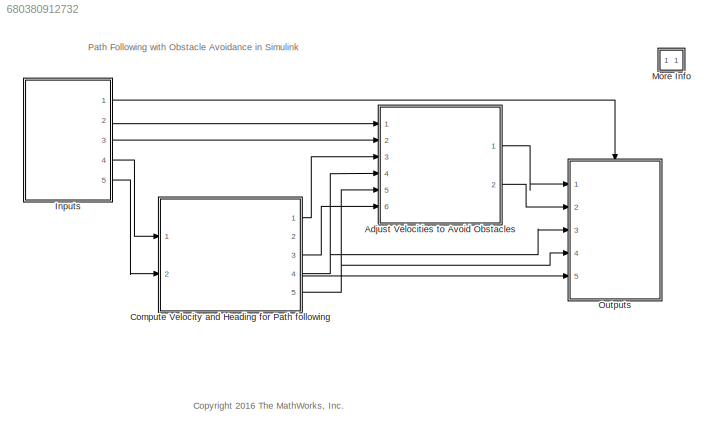
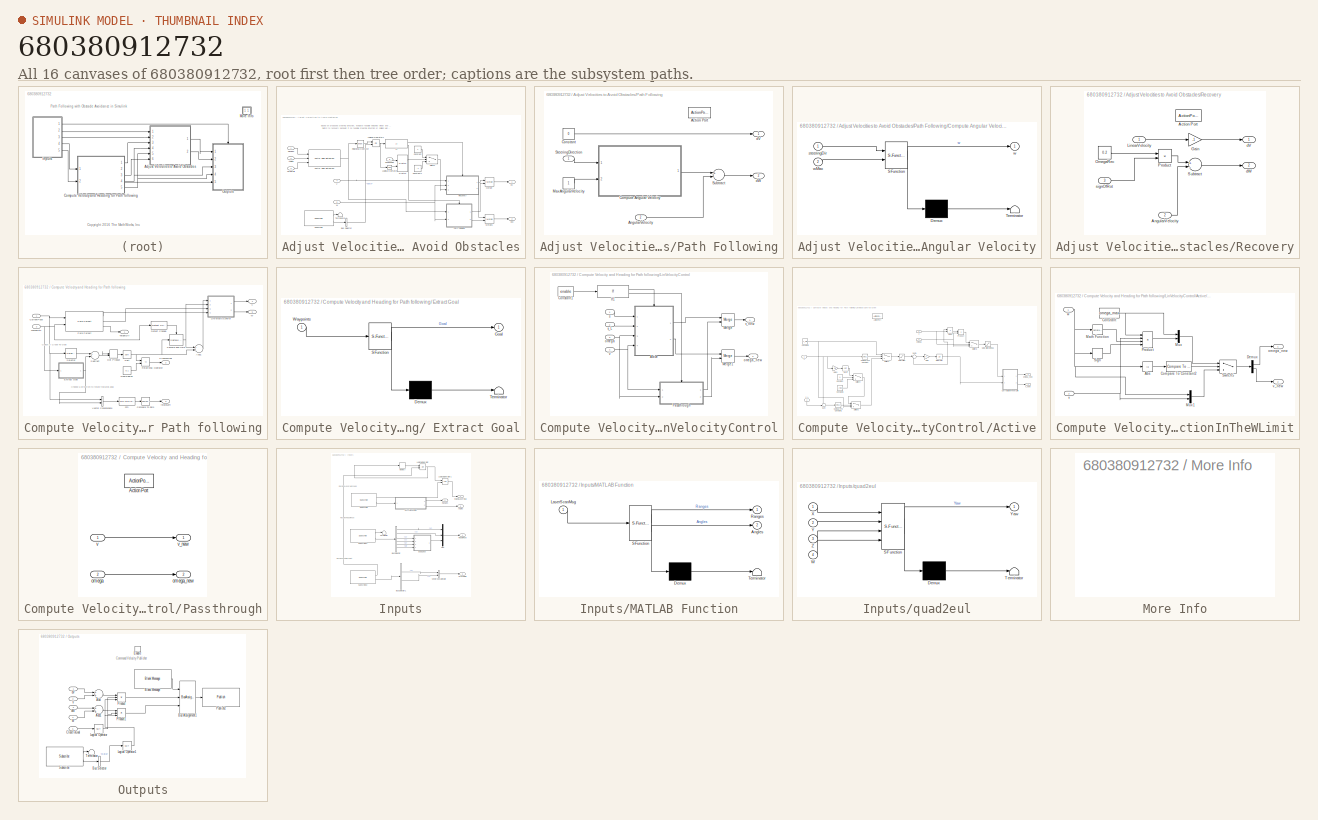
[diagram: thumbnail index - all 16 canvases of the model, root first then tree order]
MODEL slx_680380912732
KIND model
CONFIG AbsTol = auto
CONFIG EnableMultiTasking = off
CONFIG FixedStep = 0.05
CONFIG MaxStep = auto
CONFIG MinStep = auto
CONFIG RelTol = 1e-3
CONFIG SampleTimeConstraint = Unconstrained
CONFIG Solver = FixedStepAuto
CONFIG SolverName = FixedStepAuto
CONFIG StartTime = 0.0
CONFIG StopTime = 10.0
WORKSPACE source: MAT-file member
WORKSPACE SL_ROS_VariableLengthArrays_MaxSizes: struct (value not decoded)
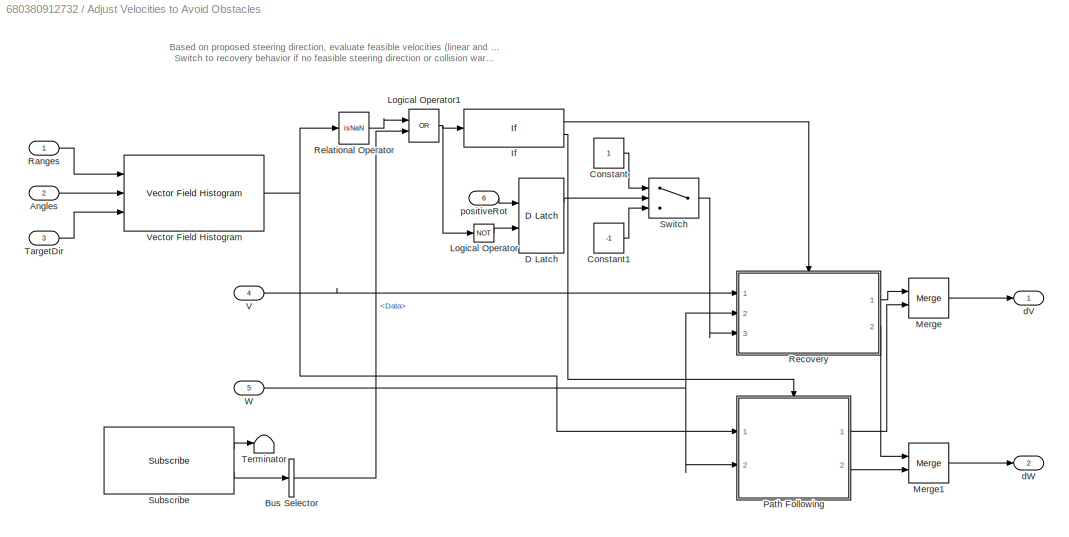
BLOCK [SubSystem] Adjust Velocities to Avoid Obstacles
  Ports = [6, 2]
  RequestExecContextInheritance = off
  Variant = off
BLOCK [Inport] Adjust Velocities to Avoid Obstacles/Angles
  IconDisplay = Port number
  Port = 2
BLOCK [BusSelector] Adjust Velocities to Avoid Obstacles/Bus Selector
  OutputAsBus = off
  OutputSignals = Data
  Ports = [1, 1]
BLOCK [Constant] Adjust Velocities to Avoid Obstacles/Constant
BLOCK [Constant] Adjust Velocities to Avoid Obstacles/Constant1
  Value = -1
BLOCK [Reference] Adjust Velocities to Avoid Obstacles/D Latch  REF=simulink_extras/Flip Flops/D Latch
  Ports = [2, 2]
  SourceBlock = simulink_extras/Flip Flops/D Latch
  SourceProductBaseCode = SL
  SourceProductName = Simulink
  SourceType = DLatch
BLOCK [If] Adjust Velocities to Avoid Obstacles/If
  IfExpression = u1 == 1
  Ports = [1, 2]
BLOCK [Logic] Adjust Velocities to Avoid Obstacles/Logical Operator
  AllPortsSameDT = off
  IconShape = distinctive
  Operator = NOT
  OutDataTypeStr = boolean
  Ports = [1, 1]
BLOCK [Logic] Adjust Velocities to Avoid Obstacles/Logical Operator1
  AllPortsSameDT = off
  Operator = OR
  OutDataTypeStr = boolean
  Ports = [2, 1]
BLOCK [Merge] Adjust Velocities to Avoid Obstacles/Merge
  Ports = [2, 1]
BLOCK [Merge] Adjust Velocities to Avoid Obstacles/Merge1
  Ports = [2, 1]
BLOCK [SubSystem] Adjust Velocities to Avoid Obstacles/Path Following
  Ports = [2, 2, 0, 0, 0, 0, 0, 1]
  RequestExecContextInheritance = off
  TreatAsAtomicUnit = on
  Variant = off
BLOCK [ActionPort] Adjust Velocities to Avoid Obstacles/Path Following/Action Port
  ActionType = else
BLOCK [Inport] Adjust Velocities to Avoid Obstacles/Path Following/AngularVelocity
  IconDisplay = Port number
  Port = 2
BLOCK [SubSystem] Adjust Velocities to Avoid Obstacles/Path Following/Compute Angular Velocity
  ErrorFcn = Stateflow.Translate.translate
  PermitHierarchicalResolution = ExplicitOnly
  Ports = [2, 1]
  RequestExecContextInheritance = off
  SFBlockType = MATLAB Function
  TreatAsAtomicUnit = on
  Variant = off
BLOCK [Demux] Adjust Velocities to Avoid Obstacles/Path Following/Compute Angular Velocity/ Demux 
  Outputs = 1
  Ports = [1, 1]
BLOCK [S-Function] Adjust Velocities to Avoid Obstacles/Path Following/Compute Angular Velocity/ SFunction 
  EnableBusSupport = on
  FunctionName = sf_sfun
  PortCounts = [2 2]
  Ports = [2, 2]
  SFcnIsStateOwnerBlock = off
  SFunctionDeploymentMode = off
  Tag = Stateflow S-Function Pure_Pursuit_With_VFH 8
BLOCK [Terminator] Adjust Velocities to Avoid Obstacles/Path Following/Compute Angular Velocity/ Terminator 
BLOCK [Inport] Adjust Velocities to Avoid Obstacles/Path Following/Compute Angular Velocity/steeringDir
  IconDisplay = Port number
BLOCK [Outport] Adjust Velocities to Avoid Obstacles/Path Following/Compute Angular Velocity/w
  IconDisplay = Port number
BLOCK [Inport] Adjust Velocities to Avoid Obstacles/Path Following/Compute Angular Velocity/wMax
  IconDisplay = Port number
  Port = 2
BLOCK [Constant] Adjust Velocities to Avoid Obstacles/Path Following/Constant
  Value = 0
BLOCK [Constant] Adjust Velocities to Avoid Obstacles/Path Following/MaxAngularVelocity
BLOCK [Inport] Adjust Velocities to Avoid Obstacles/Path Following/SteeringDirection
  IconDisplay = Port number
BLOCK [Sum] Adjust Velocities to Avoid Obstacles/Path Following/Subtract
  InputSameDT = off
  Inputs = +-
  OutDataTypeStr = Inherit: Inherit via internal rule
  Ports = [2, 1]
  SaturateOnIntegerOverflow = off
BLOCK [Outport] Adjust Velocities to Avoid Obstacles/Path Following/dV
  IconDisplay = Port number
BLOCK [Outport] Adjust Velocities to Avoid Obstacles/Path Following/dW
  IconDisplay = Port number
  Port = 2
BLOCK [Inport] Adjust Velocities to Avoid Obstacles/Ranges
  IconDisplay = Port number
BLOCK [SubSystem] Adjust Velocities to Avoid Obstacles/Recovery
  Ports = [3, 2, 0, 0, 0, 0, 0, 1]
  RequestExecContextInheritance = off
  TreatAsAtomicUnit = on
  Variant = off
BLOCK [ActionPort] Adjust Velocities to Avoid Obstacles/Recovery/Action Port
  ActionType = then
BLOCK [Inport] Adjust Velocities to Avoid Obstacles/Recovery/AngularVelocity
  IconDisplay = Port number
  Port = 2
BLOCK [Gain] Adjust Velocities to Avoid Obstacles/Recovery/Gain
  Gain = -1
  OutDataTypeStr = Inherit: Inherit via internal rule
  ParamDataTypeStr = Inherit: Inherit via internal rule
  SaturateOnIntegerOverflow = off
BLOCK [Inport] Adjust Velocities to Avoid Obstacles/Recovery/LinearVelocity
  IconDisplay = Port number
BLOCK [Constant] Adjust Velocities to Avoid Obstacles/Recovery/OmegaRec
  Value = 0.2
BLOCK [Product] Adjust Velocities to Avoid Obstacles/Recovery/Product
  InputSameDT = off
  OutDataTypeStr = Inherit: Inherit via internal rule
  Ports = [2, 1]
  RndMeth = Floor
  SaturateOnIntegerOverflow = off
BLOCK [Sum] Adjust Velocities to Avoid Obstacles/Recovery/Subtract
  InputSameDT = off
  Inputs = +-
  OutDataTypeStr = Inherit: Inherit via internal rule
  Ports = [2, 1]
  SaturateOnIntegerOverflow = off
BLOCK [Outport] Adjust Velocities to Avoid Obstacles/Recovery/dV
  IconDisplay = Port number
BLOCK [Outport] Adjust Velocities to Avoid Obstacles/Recovery/dW
  IconDisplay = Port number
  Port = 2
BLOCK [Inport] Adjust Velocities to Avoid Obstacles/Recovery/signOfRot
  IconDisplay = Port number
  Port = 3
BLOCK [RelationalOperator] Adjust Velocities to Avoid Obstacles/Relational Operator
  InputSameDT = off
  Operator = isNaN
  OutDataTypeStr = boolean
  Ports = [1, 1]
  RndMeth = Simplest
BLOCK [Reference] Adjust Velocities to Avoid Obstacles/Subscribe  REF=robotlib/Subscribe
  Ports = [0, 2]
  SourceBlock = robotlib/Subscribe
  SourceLibraryInfo = This block requires Robotics System Toolbox
  SourceProductBaseCode = RO
  SourceProductName = Robotics System Toolbox
  SourceType = ROS Subscribe
BLOCK [Switch] Adjust Velocities to Avoid Obstacles/Switch
  Criteria = u2 > Threshold
  InputSameDT = off
  SaturateOnIntegerOverflow = off
BLOCK [Inport] Adjust Velocities to Avoid Obstacles/TargetDir
  IconDisplay = Port number
  Port = 3
BLOCK [Terminator] Adjust Velocities to Avoid Obstacles/Terminator
BLOCK [Inport] Adjust Velocities to Avoid Obstacles/V
  IconDisplay = Port number
  Port = 4
BLOCK [Reference] Adjust Velocities to Avoid Obstacles/Vector Field Histogram  REF=robotalgslib/Vector Field Histogram
  Ports = [3, 1]
  SourceBlock = robotalgslib/Vector Field Histogram
  SourceProductBaseCode = RO
  SourceProductName = Robotics System Toolbox
  SourceType = robotics.slalgs.internal.VectorFieldHistogram
BLOCK [Inport] Adjust Velocities to Avoid Obstacles/W
  IconDisplay = Port number
  Port = 5
BLOCK [Outport] Adjust Velocities to Avoid Obstacles/dV
  IconDisplay = Port number
BLOCK [Outport] Adjust Velocities to Avoid Obstacles/dW
  IconDisplay = Port number
  Port = 2
BLOCK [Inport] Adjust Velocities to Avoid Obstacles/positiveRot
  IconDisplay = Port number
  Port = 6
BLOCK [SubSystem] Compute Velocity and Heading for Path following
  Ports = [2, 5]
  RequestExecContextInheritance = off
  Variant = off
BLOCK [SubSystem] Compute Velocity and Heading for Path following/ Extract Goal
  ErrorFcn = Stateflow.Translate.translate
  PermitHierarchicalResolution = ExplicitOnly
  Ports = [1, 1]
  RequestExecContextInheritance = off
  SFBlockType = MATLAB Function
  TreatAsAtomicUnit = on
  Variant = off
BLOCK [Demux] Compute Velocity and Heading for Path following/ Extract Goal/ Demux 
  Outputs = 1
  Ports = [1, 1]
BLOCK [S-Function] Compute Velocity and Heading for Path following/ Extract Goal/ SFunction 
  EnableBusSupport = on
  FunctionName = sf_sfun
  PortCounts = [1 2]
  Ports = [1, 2]
  SFcnIsStateOwnerBlock = off
  SFunctionDeploymentMode = off
  Tag = Stateflow S-Function Pure_Pursuit_With_VFH 7
BLOCK [Terminator] Compute Velocity and Heading for Path following/ Extract Goal/ Terminator 
BLOCK [Outport] Compute Velocity and Heading for Path following/ Extract Goal/Goal
  IconDisplay = Port number
BLOCK [Inport] Compute Velocity and Heading for Path following/ Extract Goal/Waypoints
  IconDisplay = Port number
BLOCK [Sum] Compute Velocity and Heading for Path following/Add1
  InputSameDT = off
  Inputs = +-
  OutDataTypeStr = Inherit: Inherit via internal rule
  Ports = [2, 1]
  SaturateOnIntegerOverflow = off
BLOCK [Outport] Compute Velocity and Heading for Path following/CloseToGoal
  IconDisplay = Port number
  Port = 2
BLOCK [Reference] Compute Velocity and Heading for Path following/Compare To Zero  REF=simulink/Logic and Bit
Operations/Compare
To Zero
  Ports = [1, 1]
  SourceBlock = simulink/Logic and Bit\nOperations/Compare\nTo Zero
  SourceProductBaseCode = SL
  SourceProductName = Simulink
  SourceType = Compare To Zero
BLOCK [Inport] Compute Velocity and Heading for Path following/CurrentPose
  IconDisplay = Port number
BLOCK [Reference] Compute Velocity and Heading for Path following/Detect Change  REF=simulink/Logic and Bit
Operations/Detect
Change
  Ports = [1, 1]
  SourceBlock = simulink/Logic and Bit\nOperations/Detect\nChange
  SourceProductBaseCode = SL
  SourceProductName = Simulink
  SourceType = Detect Change
BLOCK [DotProduct] Compute Velocity and Heading for Path following/Dot Product
  OutDataTypeStr = Inherit: Inherit via internal rule
BLOCK [Fcn] Compute Velocity and Heading for Path following/Fcn
  Expr = (u(1)-u(4))*sin(u(3))+(u(5)-u(2))*cos(u(3))
BLOCK [Constant] Compute Velocity and Heading for Path following/GoalRadius
  Value = 0.1
BLOCK [SubSystem] Compute Velocity and Heading for Path following/LinVelocityControl
  Ports = [4, 2]
  RequestExecContextInheritance = off
  Variant = off
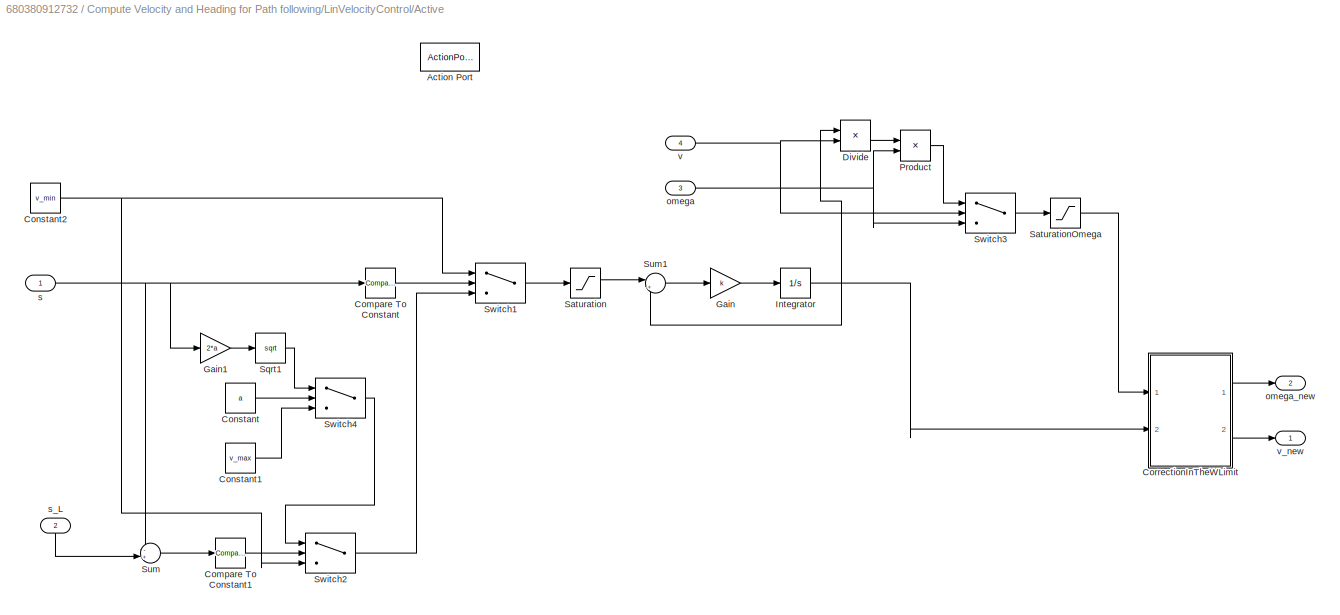
BLOCK [SubSystem] Compute Velocity and Heading for Path following/LinVelocityControl/Active
  Ports = [4, 2, 0, 0, 0, 0, 0, 1]
  RequestExecContextInheritance = off
  TreatAsAtomicUnit = on
  Variant = off
BLOCK [ActionPort] Compute Velocity and Heading for Path following/LinVelocityControl/Active/Action Port
  ActionType = then
BLOCK [Reference] Compute Velocity and Heading for Path following/LinVelocityControl/Active/Compare To Constant  REF=simulink/Logic and Bit
Operations/Compare
To Constant
  Ports = [1, 1]
  SourceBlock = simulink/Logic and Bit\nOperations/Compare\nTo Constant
  SourceProductBaseCode = SL
  SourceProductName = Simulink
  SourceType = Compare To Constant
BLOCK [Reference] Compute Velocity and Heading for Path following/LinVelocityControl/Active/Compare To Constant1  REF=simulink/Logic and Bit
Operations/Compare
To Constant
  Ports = [1, 1]
  SourceBlock = simulink/Logic and Bit\nOperations/Compare\nTo Constant
  SourceProductBaseCode = SL
  SourceProductName = Simulink
  SourceType = Compare To Constant
BLOCK [Constant] Compute Velocity and Heading for Path following/LinVelocityControl/Active/Constant
  Value = a
BLOCK [Constant] Compute Velocity and Heading for Path following/LinVelocityControl/Active/Constant1
  Value = v_max
BLOCK [Constant] Compute Velocity and Heading for Path following/LinVelocityControl/Active/Constant2
  Value = v_min
BLOCK [SubSystem] Compute Velocity and Heading for Path following/LinVelocityControl/Active/CorrectionInTheWLimit
  Ports = [2, 2]
  RequestExecContextInheritance = off
  Variant = off
BLOCK [Abs] Compute Velocity and Heading for Path following/LinVelocityControl/Active/CorrectionInTheWLimit/Abs
  SaturateOnIntegerOverflow = off
BLOCK [Reference] Compute Velocity and Heading for Path following/LinVelocityControl/Active/CorrectionInTheWLimit/Compare To Constant2  REF=simulink/Logic and Bit
Operations/Compare
To Constant
  Ports = [1, 1]
  SourceBlock = simulink/Logic and Bit\nOperations/Compare\nTo Constant
  SourceProductBaseCode = SL
  SourceProductName = Simulink
  SourceType = Compare To Constant
BLOCK [Constant] Compute Velocity and Heading for Path following/LinVelocityControl/Active/CorrectionInTheWLimit/Constant
  Value = omega_max
BLOCK [Demux] Compute Velocity and Heading for Path following/LinVelocityControl/Active/CorrectionInTheWLimit/Demux
  DisplayOption = bar
  Outputs = 2
  Ports = [1, 2]
BLOCK [Math] Compute Velocity and Heading for Path following/LinVelocityControl/Active/CorrectionInTheWLimit/Math Function
  Operator = reciprocal
  Ports = [1, 1]
BLOCK [Mux] Compute Velocity and Heading for Path following/LinVelocityControl/Active/CorrectionInTheWLimit/Mux
  DisplayOption = bar
  Inputs = 2
  Ports = [2, 1]
BLOCK [Mux] Compute Velocity and Heading for Path following/LinVelocityControl/Active/CorrectionInTheWLimit/Mux1
  DisplayOption = bar
  Inputs = 2
  Ports = [2, 1]
BLOCK [Product] Compute Velocity and Heading for Path following/LinVelocityControl/Active/CorrectionInTheWLimit/Product
  InputSameDT = off
  Inputs = 4
  OutDataTypeStr = Inherit: Inherit via internal rule
  Ports = [4, 1]
  RndMeth = Floor
  SaturateOnIntegerOverflow = off
BLOCK [Signum] Compute Velocity and Heading for Path following/LinVelocityControl/Active/CorrectionInTheWLimit/Sign
BLOCK [Switch] Compute Velocity and Heading for Path following/LinVelocityControl/Active/CorrectionInTheWLimit/Switch5
  Criteria = u2 > Threshold
  InputSameDT = off
  SaturateOnIntegerOverflow = off
BLOCK [Outport] Compute Velocity and Heading for Path following/LinVelocityControl/Active/CorrectionInTheWLimit/omega_new
  IconDisplay = Port number
BLOCK [Inport] Compute Velocity and Heading for Path following/LinVelocityControl/Active/CorrectionInTheWLimit/v
  IconDisplay = Port number
  Port = 2
BLOCK [Outport] Compute Velocity and Heading for Path following/LinVelocityControl/Active/CorrectionInTheWLimit/v_new
  IconDisplay = Port number
  Port = 2
BLOCK [Inport] Compute Velocity and Heading for Path following/LinVelocityControl/Active/CorrectionInTheWLimit/w
  IconDisplay = Port number
BLOCK [Product] Compute Velocity and Heading for Path following/LinVelocityControl/Active/Divide
  InputSameDT = off
  Inputs = */
  OutDataTypeStr = Inherit: Inherit via internal rule
  Ports = [2, 1]
  RndMeth = Floor
  SaturateOnIntegerOverflow = off
BLOCK [Gain] Compute Velocity and Heading for Path following/LinVelocityControl/Active/Gain
  Gain = k
  OutDataTypeStr = Inherit: Inherit via internal rule
  ParamDataTypeStr = Inherit: Inherit via internal rule
  SaturateOnIntegerOverflow = off
BLOCK [Gain] Compute Velocity and Heading for Path following/LinVelocityControl/Active/Gain1
  Gain = 2*a
  OutDataTypeStr = Inherit: Inherit via internal rule
  ParamDataTypeStr = Inherit: Inherit via internal rule
  SaturateOnIntegerOverflow = off
BLOCK [Integrator] Compute Velocity and Heading for Path following/LinVelocityControl/Active/Integrator
  Ports = [1, 1]
BLOCK [Product] Compute Velocity and Heading for Path following/LinVelocityControl/Active/Product
  InputSameDT = off
  OutDataTypeStr = Inherit: Inherit via internal rule
  Ports = [2, 1]
  RndMeth = Floor
  SaturateOnIntegerOverflow = off
BLOCK [Saturate] Compute Velocity and Heading for Path following/LinVelocityControl/Active/Saturation
  InputPortMap = u0
  LowerLimit = -v_max
  Ports = [1, 1]
  UpperLimit = v_max
BLOCK [Saturate] Compute Velocity and Heading for Path following/LinVelocityControl/Active/SaturationOmega
  InputPortMap = u0
  LowerLimit = -omega_max
  Ports = [1, 1]
  UpperLimit = omega_max
BLOCK [Sqrt] Compute Velocity and Heading for Path following/LinVelocityControl/Active/Sqrt1
BLOCK [Sum] Compute Velocity and Heading for Path following/LinVelocityControl/Active/Sum
  IconShape = round
  InputSameDT = off
  Inputs = -+|
  OutDataTypeStr = Inherit: Inherit via internal rule
  Ports = [2, 1]
  SaturateOnIntegerOverflow = off
BLOCK [Sum] Compute Velocity and Heading for Path following/LinVelocityControl/Active/Sum1
  IconShape = round
  InputSameDT = off
  Inputs = |+-
  OutDataTypeStr = Inherit: Inherit via internal rule
  Ports = [2, 1]
  SaturateOnIntegerOverflow = off
BLOCK [Switch] Compute Velocity and Heading for Path following/LinVelocityControl/Active/Switch1
  Criteria = u2 > Threshold
  InputSameDT = off
  SaturateOnIntegerOverflow = off
BLOCK [Switch] Compute Velocity and Heading for Path following/LinVelocityControl/Active/Switch2
  Criteria = u2 > Threshold
  InputSameDT = off
  SaturateOnIntegerOverflow = off
BLOCK [Switch] Compute Velocity and Heading for Path following/LinVelocityControl/Active/Switch3
  Criteria = u2 ~= 0
  InputSameDT = off
  SaturateOnIntegerOverflow = off
BLOCK [Switch] Compute Velocity and Heading for Path following/LinVelocityControl/Active/Switch4
  Criteria = u2 ~= 0
  InputSameDT = off
  SaturateOnIntegerOverflow = off
BLOCK [Inport] Compute Velocity and Heading for Path following/LinVelocityControl/Active/omega
  IconDisplay = Port number
  Port = 3
BLOCK [Outport] Compute Velocity and Heading for Path following/LinVelocityControl/Active/omega_new
  IconDisplay = Port number
  Port = 2
BLOCK [Inport] Compute Velocity and Heading for Path following/LinVelocityControl/Active/s
  IconDisplay = Port number
BLOCK [Inport] Compute Velocity and Heading for Path following/LinVelocityControl/Active/s_L
  IconDisplay = Port number
  Port = 2
BLOCK [Inport] Compute Velocity and Heading for Path following/LinVelocityControl/Active/v
  IconDisplay = Port number
  Port = 4
BLOCK [Outport] Compute Velocity and Heading for Path following/LinVelocityControl/Active/v_new
  IconDisplay = Port number
BLOCK [Constant] Compute Velocity and Heading for Path following/LinVelocityControl/Constant1
  OutDataTypeStr = boolean
  Value = enable
BLOCK [If] Compute Velocity and Heading for Path following/LinVelocityControl/If1
  IfExpression = u1
  Ports = [1, 2]
BLOCK [Merge] Compute Velocity and Heading for Path following/LinVelocityControl/Merge
  Ports = [2, 1]
BLOCK [Merge] Compute Velocity and Heading for Path following/LinVelocityControl/Merge1
  Ports = [2, 1]
BLOCK [SubSystem] Compute Velocity and Heading for Path following/LinVelocityControl/Passthrough
  Ports = [2, 2, 0, 0, 0, 0, 0, 1]
  RequestExecContextInheritance = off
  TreatAsAtomicUnit = on
  Variant = off
BLOCK [ActionPort] Compute Velocity and Heading for Path following/LinVelocityControl/Passthrough/Action Port
  ActionType = else
BLOCK [Inport] Compute Velocity and Heading for Path following/LinVelocityControl/Passthrough/omega
  IconDisplay = Port number
  Port = 2
BLOCK [Outport] Compute Velocity and Heading for Path following/LinVelocityControl/Passthrough/omega_new
  IconDisplay = Port number
  Port = 2
BLOCK [Inport] Compute Velocity and Heading for Path following/LinVelocityControl/Passthrough/v
  IconDisplay = Port number
BLOCK [Outport] Compute Velocity and Heading for Path following/LinVelocityControl/Passthrough/v_new
  IconDisplay = Port number
BLOCK [Inport] Compute Velocity and Heading for Path following/LinVelocityControl/omega
  IconDisplay = Port number
  Port = 3
BLOCK [Outport] Compute Velocity and Heading for Path following/LinVelocityControl/omega_new
  IconDisplay = Port number
  Port = 2
BLOCK [Inport] Compute Velocity and Heading for Path following/LinVelocityControl/s
  IconDisplay = Port number
BLOCK [Inport] Compute Velocity and Heading for Path following/LinVelocityControl/s_L
  IconDisplay = Port number
  Port = 2
BLOCK [Inport] Compute Velocity and Heading for Path following/LinVelocityControl/v
  IconDisplay = Port number
  Port = 4
BLOCK [Outport] Compute Velocity and Heading for Path following/LinVelocityControl/v_new
  IconDisplay = Port number
BLOCK [Reference] Compute Velocity and Heading for Path following/Pure Pursuit  REF=robotalgslib/Pure Pursuit
  Ports = [2, 3]
  SourceBlock = robotalgslib/Pure Pursuit
  SourceProductBaseCode = RO
  SourceProductName = Robotics System Toolbox
  SourceType = robotics.slalgs.internal.PurePursuit
BLOCK [RelationalOperator] Compute Velocity and Heading for Path following/Relational Operator
  InputSameDT = off
  Operator = <=
  OutDataTypeStr = boolean
  Ports = [2, 1]
  RndMeth = Simplest
BLOCK [Reference] Compute Velocity and Heading for Path following/Sample and Hold  REF=dspsigops/Sample
and Hold
  Ports = [1, 1, 0, 1]
  SourceBlock = dspsigops/Sample\nand Hold
  SourceProductBaseCode = DS
  SourceProductName = DSP System Toolbox
  SourceType = Sample and Hold
BLOCK [Selector] Compute Velocity and Heading for Path following/Selector
  IndexOptions = Index vector (dialog)
  Indices = [1 2]
  InputPortWidth = 3
  OutputSizes = 1
  Ports = [1, 1]
BLOCK [Sqrt] Compute Velocity and Heading for Path following/Sqrt
BLOCK [Sum] Compute Velocity and Heading for Path following/Subtract
  InputSameDT = off
  Inputs = +-
  OutDataTypeStr = Inherit: Inherit via internal rule
  Ports = [2, 1]
  SaturateOnIntegerOverflow = off
BLOCK [Outport] Compute Velocity and Heading for Path following/TargetDir
  IconDisplay = Port number
BLOCK [Outport] Compute Velocity and Heading for Path following/V
  IconDisplay = Port number
  Port = 4
BLOCK [Concatenate] Compute Velocity and Heading for Path following/Vector Concatenate
  Ports = [2, 1]
BLOCK [Outport] Compute Velocity and Heading for Path following/W
  IconDisplay = Port number
  Port = 5
BLOCK [Inport] Compute Velocity and Heading for Path following/Waypoints
  IconDisplay = Port number
  Port = 2
BLOCK [Outport] Compute Velocity and Heading for Path following/rotateLeft
  IconDisplay = Port number
  Port = 3
BLOCK [SubSystem] Inputs
  Ports = [0, 5]
  RequestExecContextInheritance = off
  Variant = off
BLOCK [Outport] Inputs/Angles
  IconDisplay = Port number
  Port = 3
BLOCK [BusSelector] Inputs/Bus Selector
  OutputAsBus = off
  OutputSignals = Pose.Pose.Position.X,Pose.Pose.Position.Y,Pose.Pose.Orientation.X,Pose.Pose.Orientation.Y,Pose.Pose.Orientation.Z,Pose.Pose.Orientation.W
  Ports = [1, 6]
BLOCK [BusSelector] Inputs/Bus Selector1
  OutputAsBus = off
  OutputSignals = X,Y
  Ports = [1, 2]
BLOCK [Outport] Inputs/IsNewLaserMsg
  IconDisplay = Port number
BLOCK [Logic] Inputs/Logical Operator
  AllPortsSameDT = off
  Operator = OR
  OutDataTypeStr = boolean
  Ports = [2, 1]
BLOCK [Logic] Inputs/Logical Operator1
  AllPortsSameDT = off
  OutDataTypeStr = boolean
  Ports = [2, 1]
BLOCK [SubSystem] Inputs/MATLAB Function
  ErrorFcn = Stateflow.Translate.translate
  PermitHierarchicalResolution = ExplicitOnly
  Ports = [1, 2]
  RequestExecContextInheritance = off
  SFBlockType = MATLAB Function
  TreatAsAtomicUnit = on
  Variant = off
BLOCK [Demux] Inputs/MATLAB Function/ Demux 
  Outputs = 1
  Ports = [1, 1]
BLOCK [S-Function] Inputs/MATLAB Function/ SFunction 
  EnableBusSupport = on
  FunctionName = sf_sfun
  PortCounts = [1 3]
  Ports = [1, 3]
  SFcnIsStateOwnerBlock = off
  SFunctionDeploymentMode = off
  Tag = Stateflow S-Function Pure_Pursuit_With_VFH 5
BLOCK [Terminator] Inputs/MATLAB Function/ Terminator 
BLOCK [Outport] Inputs/MATLAB Function/Angles
  IconDisplay = Port number
  Port = 2
BLOCK [Inport] Inputs/MATLAB Function/LaserScanMsg
  IconDisplay = Port number
BLOCK [Outport] Inputs/MATLAB Function/Ranges
  IconDisplay = Port number
BLOCK [Memory] Inputs/Memory
BLOCK [Mux] Inputs/Mux
  DisplayOption = bar
  Inputs = 3
  Ports = [3, 1]
BLOCK [Outport] Inputs/Ranges
  IconDisplay = Port number
  Port = 2
BLOCK [Outport] Inputs/RobotPose
  IconDisplay = Port number
  Port = 4
BLOCK [Reference] Inputs/Subscribe  REF=robotlib/Subscribe
  Ports = [0, 2]
  SourceBlock = robotlib/Subscribe
  SourceLibraryInfo = This block requires Robotics System Toolbox
  SourceProductBaseCode = RO
  SourceProductName = Robotics System Toolbox
  SourceType = ROS Subscribe
BLOCK [Reference] Inputs/Subscribe1  REF=robotlib/Subscribe
  Ports = [0, 2]
  SourceBlock = robotlib/Subscribe
  SourceLibraryInfo = This block requires Robotics System Toolbox
  SourceProductBaseCode = RO
  SourceProductName = Robotics System Toolbox
  SourceType = ROS Subscribe
BLOCK [Reference] Inputs/Subscribe2  REF=robotlib/Subscribe
  Ports = [0, 2]
  SourceBlock = robotlib/Subscribe
  SourceLibraryInfo = This block requires Robotics System Toolbox
  SourceProductBaseCode = RO
  SourceProductName = Robotics System Toolbox
  SourceType = ROS Subscribe
BLOCK [Terminator] Inputs/Terminator
BLOCK [Concatenate] Inputs/Vector Concatenate
  ConcatenateDimension = 2
  Mode = Multidimensional array
  Ports = [2, 1]
BLOCK [Outport] Inputs/Waypoints
  IconDisplay = Port number
  Port = 5
BLOCK [SubSystem] Inputs/quad2eul
  ErrorFcn = Stateflow.Translate.translate
  PermitHierarchicalResolution = ExplicitOnly
  Ports = [4, 1]
  RequestExecContextInheritance = off
  SFBlockType = MATLAB Function
  TreatAsAtomicUnit = on
  Variant = off
BLOCK [Demux] Inputs/quad2eul/ Demux 
  Outputs = 1
  Ports = [1, 1]
BLOCK [S-Function] Inputs/quad2eul/ SFunction 
  EnableBusSupport = on
  FunctionName = sf_sfun
  PortCounts = [4 2]
  Ports = [4, 2]
  SFcnIsStateOwnerBlock = off
  SFunctionDeploymentMode = off
  Tag = Stateflow S-Function Pure_Pursuit_With_VFH 1
BLOCK [Terminator] Inputs/quad2eul/ Terminator 
BLOCK [Inport] Inputs/quad2eul/W
  IconDisplay = Port number
  Port = 4
BLOCK [Inport] Inputs/quad2eul/X
  IconDisplay = Port number
BLOCK [Inport] Inputs/quad2eul/Y
  IconDisplay = Port number
  Port = 2
BLOCK [Outport] Inputs/quad2eul/Yaw
  IconDisplay = Port number
BLOCK [Inport] Inputs/quad2eul/Z
  IconDisplay = Port number
  Port = 3
BLOCK [SubSystem] More Info
  OpenFcn = showdemo(bdroot(gcb))
  Ports = []
  RequestExecContextInheritance = off
  Variant = off
BLOCK [SubSystem] Outputs
  Ports = [5, 0, 1]
  RequestExecContextInheritance = off
  Variant = off
BLOCK [Sum] Outputs/Add
  InputSameDT = off
  OutDataTypeStr = Inherit: Inherit via internal rule
  Ports = [2, 1]
  SaturateOnIntegerOverflow = off
BLOCK [Sum] Outputs/Add1
  InputSameDT = off
  OutDataTypeStr = Inherit: Inherit via internal rule
  Ports = [2, 1]
  SaturateOnIntegerOverflow = off
BLOCK [Reference] Outputs/Blank Message  REF=robotlib/Blank Message
  Ports = [0, 1]
  SourceBlock = robotlib/Blank Message
  SourceLibraryInfo = This block requires Robotics System Toolbox
  SourceProductBaseCode = RO
  SourceProductName = Robotics System Toolbox
  SourceType = ROS Blank Message
BLOCK [BusAssignment] Outputs/Bus Assignment1
  AssignedSignals = Linear.X,Angular.Z
  DialogController = Simulink.DDGSource_BusAssignment
  Ports = [3, 1]
BLOCK [BusSelector] Outputs/Bus Selector
  OutputAsBus = off
  OutputSignals = Data
  Ports = [1, 1]
BLOCK [Inport] Outputs/CloseToGoal
  IconDisplay = Port number
  Port = 5
BLOCK [EnablePort] Outputs/Enable
  Ports = []
BLOCK [Logic] Outputs/Logical Operator
  AllPortsSameDT = off
  Operator = NOT
  OutDataTypeStr = boolean
  Ports = [1, 1]
BLOCK [Logic] Outputs/Logical Operator1
  AllPortsSameDT = off
  Operator = NOT
  OutDataTypeStr = boolean
  Ports = [1, 1]
BLOCK [Product] Outputs/Product
  InputSameDT = off
  Inputs = 3
  OutDataTypeStr = Inherit: Inherit via internal rule
  Ports = [3, 1]
  RndMeth = Floor
  SaturateOnIntegerOverflow = off
BLOCK [Product] Outputs/Product1
  InputSameDT = off
  Inputs = 3
  OutDataTypeStr = Inherit: Inherit via internal rule
  Ports = [3, 1]
  RndMeth = Floor
  SaturateOnIntegerOverflow = off
BLOCK [Reference] Outputs/Publish2  REF=robotlib/Publish
  AttributesFormatString = %<messageType>
  Ports = [1]
  SourceBlock = robotlib/Publish
  SourceLibraryInfo = This block requires Robotics System Toolbox
  SourceProductBaseCode = RO
  SourceProductName = Robotics System Toolbox
  SourceType = ROS Publish
BLOCK [Reference] Outputs/Subscribe  REF=robotlib/Subscribe
  Ports = [0, 2]
  SourceBlock = robotlib/Subscribe
  SourceLibraryInfo = This block requires Robotics System Toolbox
  SourceProductBaseCode = RO
  SourceProductName = Robotics System Toolbox
  SourceType = ROS Subscribe
BLOCK [Terminator] Outputs/Terminator
BLOCK [Inport] Outputs/V
  IconDisplay = Port number
  Port = 3
BLOCK [Inport] Outputs/W
  IconDisplay = Port number
  Port = 4
BLOCK [Inport] Outputs/dV
  IconDisplay = Port number
BLOCK [Inport] Outputs/dW
  IconDisplay = Port number
  Port = 2
ANNOTATION (root): Path Following with Obstacle Avoidance in Simulink
ANNOTATION (root): <copyright redacted>
ANNOTATION Adjust Velocities to Avoid Obstacles: Based on proposed steering direction, evaluate feasible velocities (linear and angular). Switch to recovery behavior if no feasible steering direction or collision warning issued.
ANNOTATION Compute Velocity and Heading for Path following: Check If Close To Goal
ANNOTATION Compute Velocity and Heading for Path following: Choose a direction to rotate towards goal
ANNOTATION Inputs: Receive Laser Message
ANNOTATION Inputs: Receive Robot Pose
ANNOTATION Inputs: Receive next waypoint
ANNOTATION Outputs: Command Velocity Publisher
LINE Adjust Velocities to Avoid Obstacles/Angles:1 -> Adjust Velocities to Avoid Obstacles/Vector Field Histogram:2
LINE Adjust Velocities to Avoid Obstacles/Bus Selector:1 -> Adjust Velocities to Avoid Obstacles/Logical Operator1:2
LINE Adjust Velocities to Avoid Obstacles/Constant1:1 -> Adjust Velocities to Avoid Obstacles/Switch:3
LINE Adjust Velocities to Avoid Obstacles/Constant:1 -> Adjust Velocities to Avoid Obstacles/Switch:1
LINE Adjust Velocities to Avoid Obstacles/D Latch:1 -> Adjust Velocities to Avoid Obstacles/Switch:2
LINE Adjust Velocities to Avoid Obstacles/If:1 -> Adjust Velocities to Avoid Obstacles/Recovery:ifaction
LINE Adjust Velocities to Avoid Obstacles/If:2 -> Adjust Velocities to Avoid Obstacles/Path Following:ifaction
NET Adjust Velocities to Avoid Obstacles/Logical Operator1:1 -> Adjust Velocities to Avoid Obstacles/If:1, Adjust Velocities to Avoid Obstacles/Logical Operator:1
LINE Adjust Velocities to Avoid Obstacles/Logical Operator:1 -> Adjust Velocities to Avoid Obstacles/D Latch:2
LINE Adjust Velocities to Avoid Obstacles/Merge1:1 -> Adjust Velocities to Avoid Obstacles/dW:1
LINE Adjust Velocities to Avoid Obstacles/Merge:1 -> Adjust Velocities to Avoid Obstacles/dV:1
LINE Adjust Velocities to Avoid Obstacles/Path Following/AngularVelocity:1 -> Adjust Velocities to Avoid Obstacles/Path Following/Subtract:2
LINE Adjust Velocities to Avoid Obstacles/Path Following/Compute Angular Velocity:1 -> Adjust Velocities to Avoid Obstacles/Path Following/Subtract:1
LINE Adjust Velocities to Avoid Obstacles/Path Following/Constant:1 -> Adjust Velocities to Avoid Obstacles/Path Following/dV:1
LINE Adjust Velocities to Avoid Obstacles/Path Following/MaxAngularVelocity:1 -> Adjust Velocities to Avoid Obstacles/Path Following/Compute Angular Velocity:2
LINE Adjust Velocities to Avoid Obstacles/Path Following/SteeringDirection:1 -> Adjust Velocities to Avoid Obstacles/Path Following/Compute Angular Velocity:1
LINE Adjust Velocities to Avoid Obstacles/Path Following/Subtract:1 -> Adjust Velocities to Avoid Obstacles/Path Following/dW:1
LINE Adjust Velocities to Avoid Obstacles/Path Following:1 -> Adjust Velocities to Avoid Obstacles/Merge:2
LINE Adjust Velocities to Avoid Obstacles/Path Following:2 -> Adjust Velocities to Avoid Obstacles/Merge1:2
LINE Adjust Velocities to Avoid Obstacles/Ranges:1 -> Adjust Velocities to Avoid Obstacles/Vector Field Histogram:1
LINE Adjust Velocities to Avoid Obstacles/Recovery/AngularVelocity:1 -> Adjust Velocities to Avoid Obstacles/Recovery/Subtract:2
LINE Adjust Velocities to Avoid Obstacles/Recovery/Gain:1 -> Adjust Velocities to Avoid Obstacles/Recovery/dV:1
LINE Adjust Velocities to Avoid Obstacles/Recovery/LinearVelocity:1 -> Adjust Velocities to Avoid Obstacles/Recovery/Gain:1
LINE Adjust Velocities to Avoid Obstacles/Recovery/OmegaRec:1 -> Adjust Velocities to Avoid Obstacles/Recovery/Product:1
LINE Adjust Velocities to Avoid Obstacles/Recovery/Product:1 -> Adjust Velocities to Avoid Obstacles/Recovery/Subtract:1
LINE Adjust Velocities to Avoid Obstacles/Recovery/Subtract:1 -> Adjust Velocities to Avoid Obstacles/Recovery/dW:1
LINE Adjust Velocities to Avoid Obstacles/Recovery/signOfRot:1 -> Adjust Velocities to Avoid Obstacles/Recovery/Product:2
LINE Adjust Velocities to Avoid Obstacles/Recovery:1 -> Adjust Velocities to Avoid Obstacles/Merge:1
LINE Adjust Velocities to Avoid Obstacles/Recovery:2 -> Adjust Velocities to Avoid Obstacles/Merge1:1
LINE Adjust Velocities to Avoid Obstacles/Relational Operator:1 -> Adjust Velocities to Avoid Obstacles/Logical Operator1:1
LINE Adjust Velocities to Avoid Obstacles/Subscribe:1 -> Adjust Velocities to Avoid Obstacles/Terminator:1
LINE Adjust Velocities to Avoid Obstacles/Subscribe:2 -> Adjust Velocities to Avoid Obstacles/Bus Selector:1
LINE Adjust Velocities to Avoid Obstacles/Switch:1 -> Adjust Velocities to Avoid Obstacles/Recovery:3
LINE Adjust Velocities to Avoid Obstacles/TargetDir:1 -> Adjust Velocities to Avoid Obstacles/Vector Field Histogram:3
LINE Adjust Velocities to Avoid Obstacles/V:1 -> Adjust Velocities to Avoid Obstacles/Recovery:1
NET Adjust Velocities to Avoid Obstacles/Vector Field Histogram:1 -> Adjust Velocities to Avoid Obstacles/Path Following:1, Adjust Velocities to Avoid Obstacles/Relational Operator:1
NET Adjust Velocities to Avoid Obstacles/W:1 -> Adjust Velocities to Avoid Obstacles/Path Following:2, Adjust Velocities to Avoid Obstacles/Recovery:2
LINE Adjust Velocities to Avoid Obstacles/positiveRot:1 -> Adjust Velocities to Avoid Obstacles/D Latch:1
LINE Adjust Velocities to Avoid Obstacles:1 -> Outputs:1
LINE Adjust Velocities to Avoid Obstacles:2 -> Outputs:2
NET Compute Velocity and Heading for Path following/ Extract Goal:1 -> Compute Velocity and Heading for Path following/Subtract:2, Compute Velocity and Heading for Path following/Vector Concatenate:2
LINE Compute Velocity and Heading for Path following/Add1:1 -> Compute Velocity and Heading for Path following/LinVelocityControl:1
LINE Compute Velocity and Heading for Path following/Compare To Zero:1 -> Compute Velocity and Heading for Path following/rotateLeft:1
NET Compute Velocity and Heading for Path following/CurrentPose:1 -> Compute Velocity and Heading for Path following/Pure Pursuit:1, Compute Velocity and Heading for Path following/Selector:1, Compute Velocity and Heading for Path following/Vector Concatenate:1
LINE Compute Velocity and Heading for Path following/Detect Change:1 -> Compute Velocity and Heading for Path following/Sample and Hold:trigger
LINE Compute Velocity and Heading for Path following/Dot Product:1 -> Compute Velocity and Heading for Path following/Sqrt:1
LINE Compute Velocity and Heading for Path following/Fcn:1 -> Compute Velocity and Heading for Path following/Compare To Zero:1
LINE Compute Velocity and Heading for Path following/GoalRadius:1 -> Compute Velocity and Heading for Path following/Relational Operator:2
LINE Compute Velocity and Heading for Path following/LinVelocityControl/Active/Compare To Constant1:1 -> Compute Velocity and Heading for Path following/LinVelocityControl/Active/Switch2:2
LINE Compute Velocity and Heading for Path following/LinVelocityControl/Active/Compare To Constant:1 -> Compute Velocity and Heading for Path following/LinVelocityControl/Active/Switch1:2
LINE Compute Velocity and Heading for Path following/LinVelocityControl/Active/Constant1:1 -> Compute Velocity and Heading for Path following/LinVelocityControl/Active/Switch4:3
NET Compute Velocity and Heading for Path following/LinVelocityControl/Active/Constant2:1 -> Compute Velocity and Heading for Path following/LinVelocityControl/Active/Switch1:1, Compute Velocity and Heading for Path following/LinVelocityControl/Active/Switch2:3
LINE Compute Velocity and Heading for Path following/LinVelocityControl/Active/Constant:1 -> Compute Velocity and Heading for Path following/LinVelocityControl/Active/Switch4:2
LINE Compute Velocity and Heading for Path following/LinVelocityControl/Active/CorrectionInTheWLimit/Abs:1 -> Compute Velocity and Heading for Path following/LinVelocityControl/Active/CorrectionInTheWLimit/Compare To Constant2:1
LINE Compute Velocity and Heading for Path following/LinVelocityControl/Active/CorrectionInTheWLimit/Compare To Constant2:1 -> Compute Velocity and Heading for Path following/LinVelocityControl/Active/CorrectionInTheWLimit/Switch5:2
NET Compute Velocity and Heading for Path following/LinVelocityControl/Active/CorrectionInTheWLimit/Constant:1 -> Compute Velocity and Heading for Path following/LinVelocityControl/Active/CorrectionInTheWLimit/Mux:1, Compute Velocity and Heading for Path following/LinVelocityControl/Active/CorrectionInTheWLimit/Product:1
LINE Compute Velocity and Heading for Path following/LinVelocityControl/Active/CorrectionInTheWLimit/Demux:1 -> Compute Velocity and Heading for Path following/LinVelocityControl/Active/CorrectionInTheWLimit/omega_new:1
LINE Compute Velocity and Heading for Path following/LinVelocityControl/Active/CorrectionInTheWLimit/Demux:2 -> Compute Velocity and Heading for Path following/LinVelocityControl/Active/CorrectionInTheWLimit/v_new:1
LINE Compute Velocity and Heading for Path following/LinVelocityControl/Active/CorrectionInTheWLimit/Math Function:1 -> Compute Velocity and Heading for Path following/LinVelocityControl/Active/CorrectionInTheWLimit/Product:3
LINE Compute Velocity and Heading for Path following/LinVelocityControl/Active/CorrectionInTheWLimit/Mux1:1 -> Compute Velocity and Heading for Path following/LinVelocityControl/Active/CorrectionInTheWLimit/Switch5:3
LINE Compute Velocity and Heading for Path following/LinVelocityControl/Active/CorrectionInTheWLimit/Mux:1 -> Compute Velocity and Heading for Path following/LinVelocityControl/Active/CorrectionInTheWLimit/Switch5:1
LINE Compute Velocity and Heading for Path following/LinVelocityControl/Active/CorrectionInTheWLimit/Product:1 -> Compute Velocity and Heading for Path following/LinVelocityControl/Active/CorrectionInTheWLimit/Mux:2
LINE Compute Velocity and Heading for Path following/LinVelocityControl/Active/CorrectionInTheWLimit/Sign:1 -> Compute Velocity and Heading for Path following/LinVelocityControl/Active/CorrectionInTheWLimit/Product:4
LINE Compute Velocity and Heading for Path following/LinVelocityControl/Active/CorrectionInTheWLimit/Switch5:1 -> Compute Velocity and Heading for Path following/LinVelocityControl/Active/CorrectionInTheWLimit/Demux:1
NET Compute Velocity and Heading for Path following/LinVelocityControl/Active/CorrectionInTheWLimit/v:1 -> Compute Velocity and Heading for Path following/LinVelocityControl/Active/CorrectionInTheWLimit/Mux1:2, Compute Velocity and Heading for Path following/LinVelocityControl/Active/CorrectionInTheWLimit/Product:2
NET Compute Velocity and Heading for Path following/LinVelocityControl/Active/CorrectionInTheWLimit/w:1 -> Compute Velocity and Heading for Path following/LinVelocityControl/Active/CorrectionInTheWLimit/Abs:1, Compute Velocity and Heading for Path following/LinVelocityControl/Active/CorrectionInTheWLimit/Math Function:1, Compute Velocity and Heading for Path following/LinVelocityControl/Active/CorrectionInTheWLimit/Mux1:1, Compute Velocity and Heading for Path following/LinVelocityControl/Active/CorrectionInTheWLimit/Sign:1
LINE Compute Velocity and Heading for Path following/LinVelocityControl/Active/CorrectionInTheWLimit:1 -> Compute Velocity and Heading for Path following/LinVelocityControl/Active/omega_new:1
LINE Compute Velocity and Heading for Path following/LinVelocityControl/Active/CorrectionInTheWLimit:2 -> Compute Velocity and Heading for Path following/LinVelocityControl/Active/v_new:1
LINE Compute Velocity and Heading for Path following/LinVelocityControl/Active/Divide:1 -> Compute Velocity and Heading for Path following/LinVelocityControl/Active/Product:1
LINE Compute Velocity and Heading for Path following/LinVelocityControl/Active/Gain1:1 -> Compute Velocity and Heading for Path following/LinVelocityControl/Active/Sqrt1:1
LINE Compute Velocity and Heading for Path following/LinVelocityControl/Active/Gain:1 -> Compute Velocity and Heading for Path following/LinVelocityControl/Active/Integrator:1
NET Compute Velocity and Heading for Path following/LinVelocityControl/Active/Integrator:1 -> Compute Velocity and Heading for Path following/LinVelocityControl/Active/CorrectionInTheWLimit:2, Compute Velocity and Heading for Path following/LinVelocityControl/Active/Divide:1, Compute Velocity and Heading for Path following/LinVelocityControl/Active/Sum1:2
LINE Compute Velocity and Heading for Path following/LinVelocityControl/Active/Product:1 -> Compute Velocity and Heading for Path following/LinVelocityControl/Active/Switch3:1
LINE Compute Velocity and Heading for Path following/LinVelocityControl/Active/Saturation:1 -> Compute Velocity and Heading for Path following/LinVelocityControl/Active/Sum1:1
LINE Compute Velocity and Heading for Path following/LinVelocityControl/Active/SaturationOmega:1 -> Compute Velocity and Heading for Path following/LinVelocityControl/Active/CorrectionInTheWLimit:1
LINE Compute Velocity and Heading for Path following/LinVelocityControl/Active/Sqrt1:1 -> Compute Velocity and Heading for Path following/LinVelocityControl/Active/Switch4:1
LINE Compute Velocity and Heading for Path following/LinVelocityControl/Active/Sum1:1 -> Compute Velocity and Heading for Path following/LinVelocityControl/Active/Gain:1
LINE Compute Velocity and Heading for Path following/LinVelocityControl/Active/Sum:1 -> Compute Velocity and Heading for Path following/LinVelocityControl/Active/Compare To Constant1:1
LINE Compute Velocity and Heading for Path following/LinVelocityControl/Active/Switch1:1 -> Compute Velocity and Heading for Path following/LinVelocityControl/Active/Saturation:1
LINE Compute Velocity and Heading for Path following/LinVelocityControl/Active/Switch2:1 -> Compute Velocity and Heading for Path following/LinVelocityControl/Active/Switch1:3
LINE Compute Velocity and Heading for Path following/LinVelocityControl/Active/Switch3:1 -> Compute Velocity and Heading for Path following/LinVelocityControl/Active/SaturationOmega:1
LINE Compute Velocity and Heading for Path following/LinVelocityControl/Active/Switch4:1 -> Compute Velocity and Heading for Path following/LinVelocityControl/Active/Switch2:1
NET Compute Velocity and Heading for Path following/LinVelocityControl/Active/omega:1 -> Compute Velocity and Heading for Path following/LinVelocityControl/Active/Product:2, Compute Velocity and Heading for Path following/LinVelocityControl/Active/Switch3:3
NET Compute Velocity and Heading for Path following/LinVelocityControl/Active/s:1 -> Compute Velocity and Heading for Path following/LinVelocityControl/Active/Compare To Constant:1, Compute Velocity and Heading for Path following/LinVelocityControl/Active/Gain1:1, Compute Velocity and Heading for Path following/LinVelocityControl/Active/Sum:1
LINE Compute Velocity and Heading for Path following/LinVelocityControl/Active/s_L:1 -> Compute Velocity and Heading for Path following/LinVelocityControl/Active/Sum:2
NET Compute Velocity and Heading for Path following/LinVelocityControl/Active/v:1 -> Compute Velocity and Heading for Path following/LinVelocityControl/Active/Divide:2, Compute Velocity and Heading for Path following/LinVelocityControl/Active/Switch3:2
LINE Compute Velocity and Heading for Path following/LinVelocityControl/Active:1 -> Compute Velocity and Heading for Path following/LinVelocityControl/Merge:1
LINE Compute Velocity and Heading for Path following/LinVelocityControl/Active:2 -> Compute Velocity and Heading for Path following/LinVelocityControl/Merge1:1
LINE Compute Velocity and Heading for Path following/LinVelocityControl/Constant1:1 -> Compute Velocity and Heading for Path following/LinVelocityControl/If1:1
LINE Compute Velocity and Heading for Path following/LinVelocityControl/If1:1 -> Compute Velocity and Heading for Path following/LinVelocityControl/Active:ifaction
LINE Compute Velocity and Heading for Path following/LinVelocityControl/If1:2 -> Compute Velocity and Heading for Path following/LinVelocityControl/Passthrough:ifaction
LINE Compute Velocity and Heading for Path following/LinVelocityControl/Merge1:1 -> Compute Velocity and Heading for Path following/LinVelocityControl/omega_new:1
LINE Compute Velocity and Heading for Path following/LinVelocityControl/Merge:1 -> Compute Velocity and Heading for Path following/LinVelocityControl/v_new:1
LINE Compute Velocity and Heading for Path following/LinVelocityControl/Passthrough/omega:1 -> Compute Velocity and Heading for Path following/LinVelocityControl/Passthrough/omega_new:1
LINE Compute Velocity and Heading for Path following/LinVelocityControl/Passthrough/v:1 -> Compute Velocity and Heading for Path following/LinVelocityControl/Passthrough/v_new:1
LINE Compute Velocity and Heading for Path following/LinVelocityControl/Passthrough:1 -> Compute Velocity and Heading for Path following/LinVelocityControl/Merge:2
LINE Compute Velocity and Heading for Path following/LinVelocityControl/Passthrough:2 -> Compute Velocity and Heading for Path following/LinVelocityControl/Merge1:2
NET Compute Velocity and Heading for Path following/LinVelocityControl/omega:1 -> Compute Velocity and Heading for Path following/LinVelocityControl/Active:3, Compute Velocity and Heading for Path following/LinVelocityControl/Passthrough:2
LINE Compute Velocity and Heading for Path following/LinVelocityControl/s:1 -> Compute Velocity and Heading for Path following/LinVelocityControl/Active:1
LINE Compute Velocity and Heading for Path following/LinVelocityControl/s_L:1 -> Compute Velocity and Heading for Path following/LinVelocityControl/Active:2
NET Compute Velocity and Heading for Path following/LinVelocityControl/v:1 -> Compute Velocity and Heading for Path following/LinVelocityControl/Active:4, Compute Velocity and Heading for Path following/LinVelocityControl/Passthrough:1
LINE Compute Velocity and Heading for Path following/LinVelocityControl:1 -> Compute Velocity and Heading for Path following/V:1
LINE Compute Velocity and Heading for Path following/LinVelocityControl:2 -> Compute Velocity and Heading for Path following/W:1
LINE Compute Velocity and Heading for Path following/Pure Pursuit:1 -> Compute Velocity and Heading for Path following/LinVelocityControl:4
LINE Compute Velocity and Heading for Path following/Pure Pursuit:2 -> Compute Velocity and Heading for Path following/LinVelocityControl:3
LINE Compute Velocity and Heading for Path following/Pure Pursuit:3 -> Compute Velocity and Heading for Path following/TargetDir:1
LINE Compute Velocity and Heading for Path following/Relational Operator:1 -> Compute Velocity and Heading for Path following/CloseToGoal:1
NET Compute Velocity and Heading for Path following/Sample and Hold:1 -> Compute Velocity and Heading for Path following/Add1:1, Compute Velocity and Heading for Path following/LinVelocityControl:2
LINE Compute Velocity and Heading for Path following/Selector:1 -> Compute Velocity and Heading for Path following/Subtract:1
NET Compute Velocity and Heading for Path following/Sqrt:1 -> Compute Velocity and Heading for Path following/Add1:2, Compute Velocity and Heading for Path following/Relational Operator:1, Compute Velocity and Heading for Path following/Sample and Hold:1
NET Compute Velocity and Heading for Path following/Subtract:1 -> Compute Velocity and Heading for Path following/Dot Product:1, Compute Velocity and Heading for Path following/Dot Product:2
LINE Compute Velocity and Heading for Path following/Vector Concatenate:1 -> Compute Velocity and Heading for Path following/Fcn:1
NET Compute Velocity and Heading for Path following/Waypoints:1 -> Compute Velocity and Heading for Path following/ Extract Goal:1, Compute Velocity and Heading for Path following/Detect Change:1, Compute Velocity and Heading for Path following/Pure Pursuit:2
LINE Compute Velocity and Heading for Path following:1 -> Adjust Velocities to Avoid Obstacles:3
LINE Compute Velocity and Heading for Path following:2 -> Outputs:5
LINE Compute Velocity and Heading for Path following:3 -> Adjust Velocities to Avoid Obstacles:6
NET Compute Velocity and Heading for Path following:4 -> Adjust Velocities to Avoid Obstacles:4, Outputs:3
NET Compute Velocity and Heading for Path following:5 -> Adjust Velocities to Avoid Obstacles:5, Outputs:4
LINE Inputs/Bus Selector1:1 -> Inputs/Vector Concatenate:1
LINE Inputs/Bus Selector1:2 -> Inputs/Vector Concatenate:2
LINE Inputs/Bus Selector:1 -> Inputs/Mux:1
LINE Inputs/Bus Selector:2 -> Inputs/Mux:2
LINE Inputs/Bus Selector:3 -> Inputs/quad2eul:1
LINE Inputs/Bus Selector:4 -> Inputs/quad2eul:2
LINE Inputs/Bus Selector:5 -> Inputs/quad2eul:3
LINE Inputs/Bus Selector:6 -> Inputs/quad2eul:4
LINE Inputs/Logical Operator1:1 -> Inputs/IsNewLaserMsg:1
NET Inputs/Logical Operator:1 -> Inputs/Logical Operator1:1, Inputs/Memory:1
LINE Inputs/MATLAB Function:1 -> Inputs/Ranges:1
LINE Inputs/MATLAB Function:2 -> Inputs/Angles:1
LINE Inputs/Memory:1 -> Inputs/Logical Operator:1
LINE Inputs/Mux:1 -> Inputs/RobotPose:1
LINE Inputs/Subscribe1:1 -> Inputs/Terminator:1
LINE Inputs/Subscribe1:2 -> Inputs/Bus Selector:1
LINE Inputs/Subscribe2:1 -> Inputs/Logical Operator:2
LINE Inputs/Subscribe2:2 -> Inputs/Bus Selector1:1
LINE Inputs/Subscribe:1 -> Inputs/Logical Operator1:2
LINE Inputs/Subscribe:2 -> Inputs/MATLAB Function:1
LINE Inputs/Vector Concatenate:1 -> Inputs/Waypoints:1
LINE Inputs/quad2eul:1 -> Inputs/Mux:3
LINE Inputs:1 -> Outputs:enable
LINE Inputs:2 -> Adjust Velocities to Avoid Obstacles:1
LINE Inputs:3 -> Adjust Velocities to Avoid Obstacles:2
LINE Inputs:4 -> Compute Velocity and Heading for Path following:1
LINE Inputs:5 -> Compute Velocity and Heading for Path following:2
LINE Outputs/Add1:1 -> Outputs/Product1:1
LINE Outputs/Add:1 -> Outputs/Product:1
LINE Outputs/Blank Message:1 -> Outputs/Bus Assignment1:1
LINE Outputs/Bus Assignment1:1 -> Outputs/Publish2:1
LINE Outputs/Bus Selector:1 -> Outputs/Logical Operator1:1
LINE Outputs/CloseToGoal:1 -> Outputs/Logical Operator:1
NET Outputs/Logical Operator1:1 -> Outputs/Product1:3, Outputs/Product:3
NET Outputs/Logical Operator:1 -> Outputs/Product1:2, Outputs/Product:2
LINE Outputs/Product1:1 -> Outputs/Bus Assignment1:3
LINE Outputs/Product:1 -> Outputs/Bus Assignment1:2
LINE Outputs/Subscribe:1 -> Outputs/Terminator:1
LINE Outputs/Subscribe:2 -> Outputs/Bus Selector:1
LINE Outputs/V:1 -> Outputs/Add:2
LINE Outputs/W:1 -> Outputs/Add1:2
LINE Outputs/dV:1 -> Outputs/Add:1
LINE Outputs/dW:1 -> Outputs/Add1:1
note: NET lines group one-source signal fan-out (src -> all destinations, sorted); 1:1 wires keep LINE
CHART Inputs/quad2eul states=1 transitions=1
  STATE_LABEL 'eML_blk_kernel()'
  STATE_LABEL 'SCRIPT:\nfunction Yaw = quat2eulBlk(X, Y, Z, W)\n%#codegen\n\neularAngles = quat2eul([W, X, Y, Z]);\nYaw = eularAngles(1);'
CHART Inputs/MATLAB Function states=1 transitions=1
  STATE_LABEL 'eML_blk_kernel()'
  STATE_LABEL "SCRIPT:\nfunction [Ranges, Angles] = ExtractRangeData(LaserScanMsg)\n%#codegen\n\n% Extract Range information\nRanges = double(LaserScanMsg.Ranges);\n\n% Construct Angles vector using AngleMin and AngleIncrement from sensor\n% reading.\nangMin = double(LaserScanMsg.AngleMin);\nangIncrement = double(LaserScanMsg.AngleIncrement);\n\nnumReadings = numel(Ranges);\nrawAngles = angMin + (0:numReadings-1)' * angIncre...<+106ch>"
CHART Compute Velocity and Heading for Path following/ Extract Goal states=1 transitions=1
  STATE_LABEL 'eML_blk_kernel()'
  STATE_LABEL 'SCRIPT:\nfunction Goal = extractGoal(Waypoints)\n%#codegen\n%b = isnan(Waypoints);\n%[rows,~] = find(b);\n%ridx = setdiff(1:size(Waypoints,1), sort(rows));\n%Goal = [Waypoints(ridx(end), 1) Waypoints(ridx(end), 2)];\n\n% Goal = next waypoint (X, Y coordinate)\nGoal = [Waypoints(end, 1) Waypoints(end, 2)];'
CHART Adjust Velocities to Avoid Obstacles/Path Following/Compute Angular Velocity states=1 transitions=1
  STATE_LABEL 'eML_blk_kernel()'
  STATE_LABEL "SCRIPT:\nfunction w = exampleHelperComputeAngularVelocity(steeringDir, wMax)\n%EXAMPLEHELPERCOMPUTEANGULARVELOCITY Compute angular velocity\n%   W = exampleHelperComputeAngularVelocity(STEERINGDIR)\n%   returns the angular velocity W for a differential drive robot in radians\n%   per second for a given steering direction STEERINGDIR in the robot's\n%   coordinate frame in radians.\n%\n%   W = exampleHelpe...<+1444ch>"
